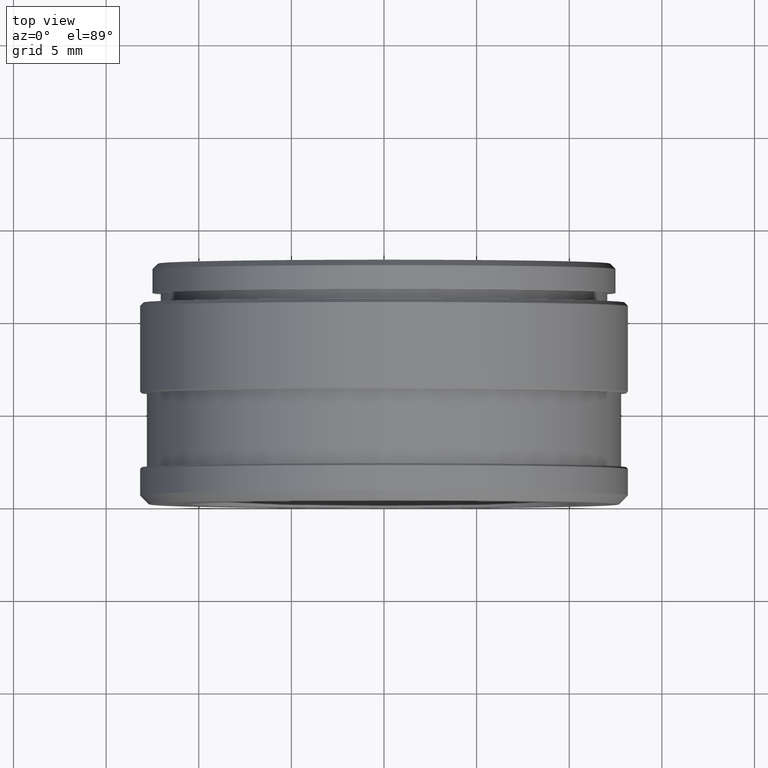
[diagram: clean part render]
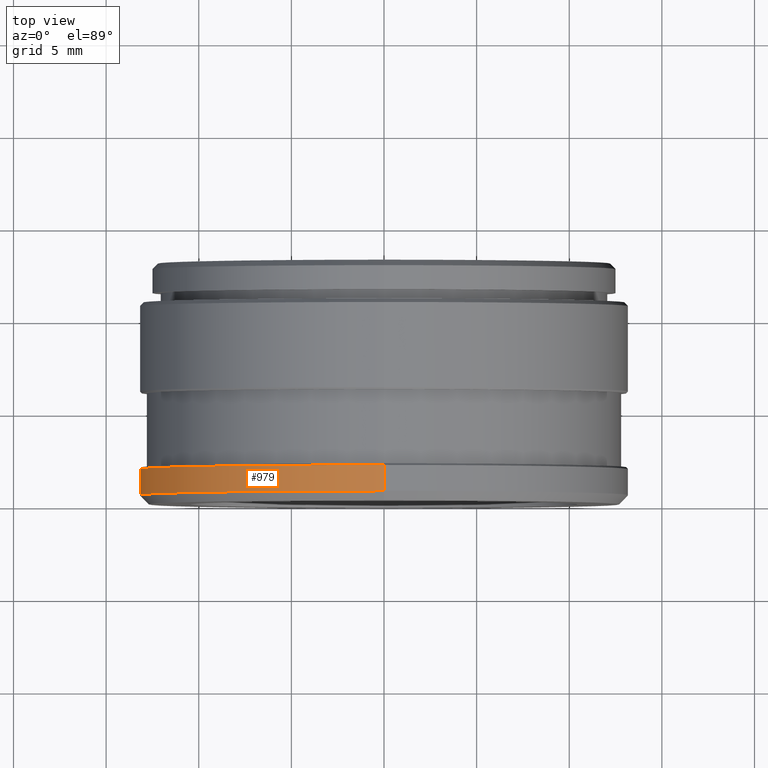
[diagram: same view with one face highlighted and labeled with its STEP entity id]
A machine part, top view. The second image highlights one B-rep face of the part: STEP entity #979.
In plain terms, the highlighted cylindrical surface (partial cylindrical patch) has radius 13.2 mm, axis along (-0, -1, -0).
Its self-contained STEP definition (entity closure, byte-faithful):
#32 = CARTESIAN_POINT ( 'NONE',  ( 0.0000000000000000000, -5.278745474983225000, 0.0000000000000000000 ) ) ;
#147 = VECTOR ( 'NONE', #193, 1000.000000000000000 ) ;
#193 = DIRECTION ( 'NONE',  ( -0.0000000000000000000, -1.000000000000000000, -0.0000000000000000000 ) ) ;
#194 = EDGE_CURVE ( 'NONE', #1109, #1127, #253, .T. ) ;
#213 = CARTESIAN_POINT ( 'NONE',  ( 0.0000000000000000000, 1.899998760320159100, 0.0000000000000000000 ) ) ;
#238 = VECTOR ( 'NONE', #475, 1000.000000000000000 ) ;
#249 = CARTESIAN_POINT ( 'NONE',  ( 0.0000000000000000000, 0.5000022994609024700, 0.0000000000000000000 ) ) ;
#253 = LINE ( 'NONE', #1194, #147 ) ;
#286 = CYLINDRICAL_SURFACE ( 'NONE', #603, 13.20000000000072900 ) ;
#308 = DIRECTION ( 'NONE',  ( 0.0000000000000000000, 0.0000000000000000000, -1.000000000000000000 ) ) ;
#337 = EDGE_CURVE ( 'NONE', #551, #1127, #816, .T. ) ;
#338 = ORIENTED_EDGE ( 'NONE', *, *, #791, .F. ) ;
#340 = CARTESIAN_POINT ( 'NONE',  ( 1.616533774874595300E-015, 1.899998760320159100, 13.20000000000072900 ) ) ;
#464 = CARTESIAN_POINT ( 'NONE',  ( 1.616533774874595300E-015, -5.278745474983225000, 13.20000000000072900 ) ) ;
#475 = DIRECTION ( 'NONE',  ( -0.0000000000000000000, -1.000000000000000000, -0.0000000000000000000 ) ) ;
#551 = VERTEX_POINT ( 'NONE', #669 ) ;
#567 = CARTESIAN_POINT ( 'NONE',  ( 0.0000000000000000000, 0.5000022994609024700, -13.20000000000072900 ) ) ;
#578 = DIRECTION ( 'NONE',  ( -0.0000000000000000000, -1.000000000000000000, -0.0000000000000000000 ) ) ;
#603 = AXIS2_PLACEMENT_3D ( 'NONE', #32, #1080, #832 ) ;
#606 = DIRECTION ( 'NONE',  ( -0.0000000000000000000, -1.000000000000000000, -0.0000000000000000000 ) ) ;
#624 = ORIENTED_EDGE ( 'NONE', *, *, #194, .T. ) ;
#669 = CARTESIAN_POINT ( 'NONE',  ( 1.616533774874595300E-015, 0.5000022994609024700, 13.20000000000072900 ) ) ;
#756 = CIRCLE ( 'NONE', #1142, 13.20000000000072900 ) ;
#761 = CARTESIAN_POINT ( 'NONE',  ( 0.0000000000000000000, 1.899998760320159100, -13.20000000000072900 ) ) ;
#791 = EDGE_CURVE ( 'NONE', #1181, #551, #1105, .T. ) ;
#813 = ORIENTED_EDGE ( 'NONE', *, *, #337, .F. ) ;
#816 = CIRCLE ( 'NONE', #1073, 13.20000000000072900 ) ;
#832 = DIRECTION ( 'NONE',  ( 0.0000000000000000000, 0.0000000000000000000, -1.000000000000000000 ) ) ;
#841 = EDGE_CURVE ( 'NONE', #1181, #1109, #756, .T. ) ;
#870 = DIRECTION ( 'NONE',  ( 0.0000000000000000000, 0.0000000000000000000, -1.000000000000000000 ) ) ;
#951 = ORIENTED_EDGE ( 'NONE', *, *, #841, .T. ) ;
#961 = FACE_OUTER_BOUND ( 'NONE', #1204, .T. ) ;
#979 = ADVANCED_FACE ( 'NONE', ( #961 ), #286, .T. ) ;
#1073 = AXIS2_PLACEMENT_3D ( 'NONE', #249, #606, #308 ) ;
#1080 = DIRECTION ( 'NONE',  ( -0.0000000000000000000, -1.000000000000000000, -0.0000000000000000000 ) ) ;
#1105 = LINE ( 'NONE', #464, #238 ) ;
#1109 = VERTEX_POINT ( 'NONE', #761 ) ;
#1127 = VERTEX_POINT ( 'NONE', #567 ) ;
#1142 = AXIS2_PLACEMENT_3D ( 'NONE', #213, #578, #870 ) ;
#1181 = VERTEX_POINT ( 'NONE', #340 ) ;
#1194 = CARTESIAN_POINT ( 'NONE',  ( 0.0000000000000000000, -5.278745474983225000, -13.20000000000072900 ) ) ;
#1204 = EDGE_LOOP ( 'NONE', ( #338, #951, #624, #813 ) ) ;